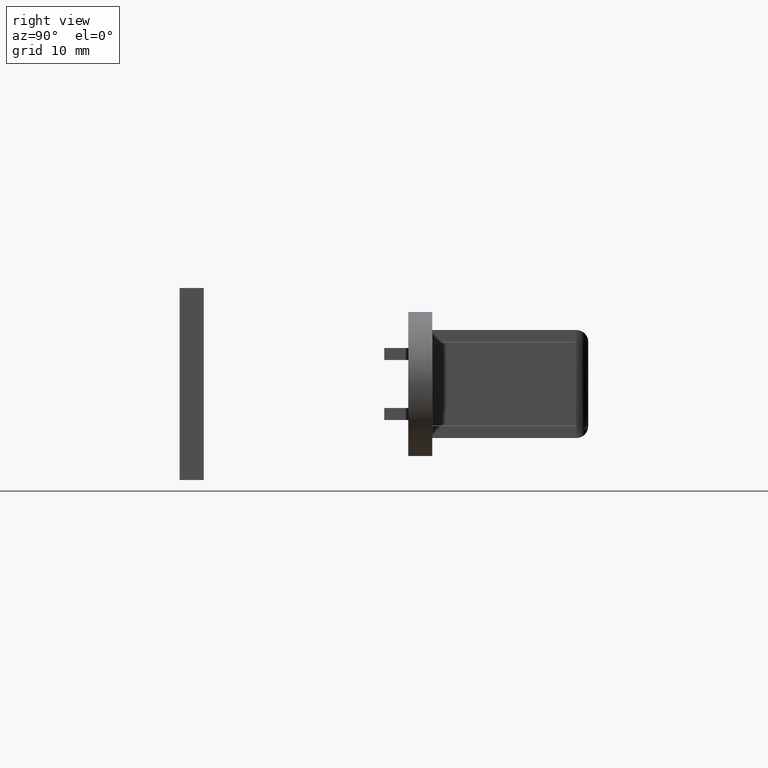
[diagram: clean part render]
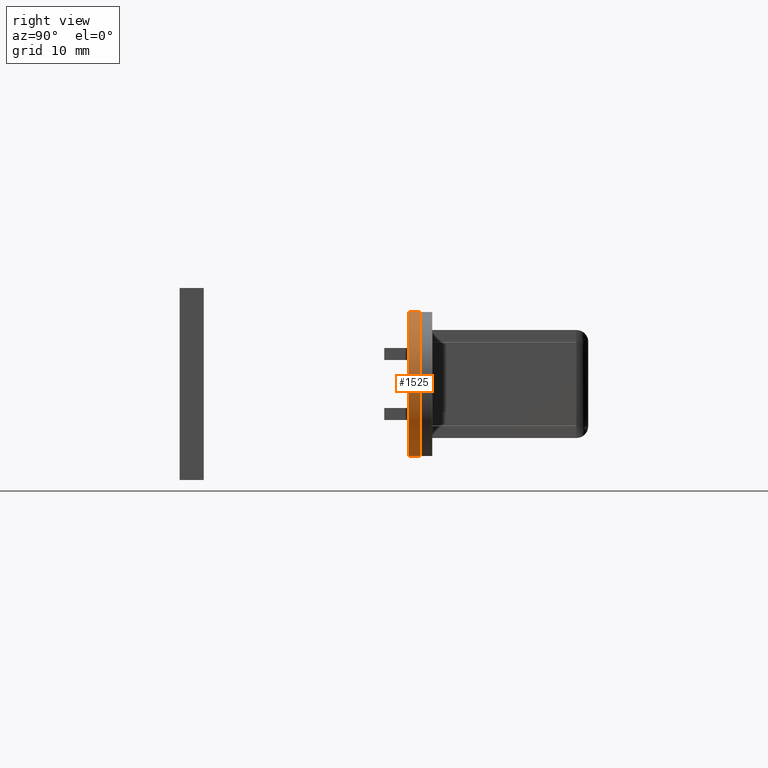
[diagram: same view with one face highlighted and labeled with its STEP entity id]
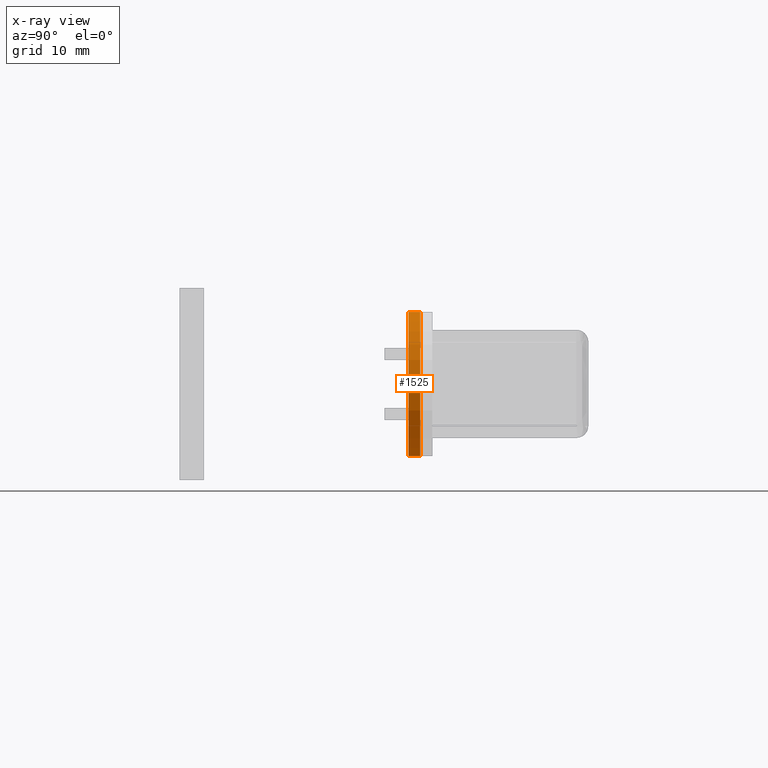
[diagram: x-ray of the same camera — body ghosted, the highlighted face saturated]
A machine part, right view. The second image highlights one B-rep face of the part: STEP entity #1525.
The next image is the same camera in x-ray: the body ghosted, the highlighted face saturated — about 0% of this face is hidden behind the body in this view.
In plain terms, the highlighted face is a freeform B-spline surface patch.
Its self-contained STEP definition (entity closure, byte-faithful):
#1278=CARTESIAN_POINT('',(17.999995999999999,-15.0,-6.0));
#1279=VERTEX_POINT('',#1278);
#1292=CARTESIAN_POINT('',(17.999995999999999,-14.000000000000121,-6.0));
#1293=VERTEX_POINT('',#1292);
#1299=CARTESIAN_POINT('',(17.999995999999999,-14.000000000000121,-6.0));
#1300=CARTESIAN_POINT('',(17.999995999999999,-15.0,-6.0));
#1301=QUASI_UNIFORM_CURVE('',1,(#1299,#1300),.UNSPECIFIED.,.F.,.U.);
#1302=EDGE_CURVE('',#1293,#1279,#1301,.T.);
#1429=CARTESIAN_POINT('',(18.009793955705899,-15.0,5.999992000000000));
#1430=VERTEX_POINT('',#1429);
#1436=CARTESIAN_POINT('',(18.009793955705899,-14.000000000000121,5.999992000000000));
#1437=VERTEX_POINT('',#1436);
#1438=CARTESIAN_POINT('',(18.009793955705899,-14.000000000000121,5.999992000000000));
#1439=CARTESIAN_POINT('',(18.009793955705899,-15.0,5.999992000000000));
#1440=QUASI_UNIFORM_CURVE('',1,(#1438,#1439),.UNSPECIFIED.,.F.,.U.);
#1441=EDGE_CURVE('',#1437,#1430,#1440,.T.);
#1452=CARTESIAN_POINT('',(17.842934310152749,-13.975000000000120,5.997943949853342));
#1453=CARTESIAN_POINT('',(17.842934310152749,-15.025625000000000,5.997943949853342));
#1454=CARTESIAN_POINT('',(24.163448437057401,-13.975000000000122,6.163452437057412));
#1455=CARTESIAN_POINT('',(24.163448437057401,-15.025624999999996,6.163452437057412));
#1456=CARTESIAN_POINT('',(23.997939949853340,-13.975000000000120,-0.157061689847231));
#1457=CARTESIAN_POINT('',(23.997939949853340,-15.025625000000000,-0.157061689847231));
#1458=CARTESIAN_POINT('',(23.832431462649279,-13.975000000000122,-6.477575816751870));
#1459=CARTESIAN_POINT('',(23.832431462649279,-15.025624999999996,-6.477575816751870));
#1460=CARTESIAN_POINT('',(17.529241425632939,-13.975000000000120,-5.981504002398763));
#1461=CARTESIAN_POINT('',(17.529241425632939,-15.025625000000000,-5.981504002398763));
#1469=(BOUNDED_SURFACE()B_SPLINE_SURFACE(1,2,((#1452,#1454,#1456,#1458,#1460),(#1453,#1455,#1457,#1459,#1461)),.UNSPECIFIED.,.F.,.F.,.U.)B_SPLINE_SURFACE_WITH_KNOTS((2,2),(3,2,3),(0.0,1.0),(0.0,10.311213743204060,20.622427486408110),.UNSPECIFIED.)GEOMETRIC_REPRESENTATION_ITEM()RATIONAL_B_SPLINE_SURFACE(((1.0,0.688354575693754,1.0,0.688354575693754,1.0),(1.0,0.688354575693754,1.0,0.688354575693754,1.0)))REPRESENTATION_ITEM('')SURFACE());
#1470=CARTESIAN_POINT('',(17.999995999999999,-15.0,-6.0));
#1471=CARTESIAN_POINT('',(18.331158682282190,-15.000000000000011,-6.000014240358727));
#1472=CARTESIAN_POINT('',(19.091623677619719,-14.999999999999920,-5.936925208282705));
#1473=CARTESIAN_POINT('',(20.041992235668289,-15.000000000000149,-5.670965191140366));
#1474=CARTESIAN_POINT('',(20.832759703809579,-14.999999999999829,-5.302997381559284));
#1475=CARTESIAN_POINT('',(21.515239814754299,-15.000000000000080,-4.888533853382110));
#1476=CARTESIAN_POINT('',(22.256084738064800,-15.000000000000259,-4.277217183423700));
#1477=CARTESIAN_POINT('',(22.944072594409761,-14.999999999999689,-3.455191869077793));
#1478=CARTESIAN_POINT('',(23.493533199793649,-15.000000000000080,-2.493385472955543));
#1479=CARTESIAN_POINT('',(23.836947858457510,-15.000000000000149,-1.516733885300389));
#1480=CARTESIAN_POINT('',(23.990924591499670,-14.999999999999540,-0.582124650855105));
#1481=CARTESIAN_POINT('',(24.012104475339189,-15.000000000001180,0.253215154506520));
#1482=CARTESIAN_POINT('',(23.916711183584191,-14.999999999999339,1.145731924935947));
#1483=CARTESIAN_POINT('',(23.648279633049491,-15.000000000000190,2.119445581952790));
#1484=CARTESIAN_POINT('',(23.182329962993371,-15.000000000000210,3.084154414574544));
#1485=CARTESIAN_POINT('',(22.649500744973668,-15.000000000000369,3.823074696190967));
#1486=CARTESIAN_POINT('',(22.021563651128510,-14.999999999999870,4.480173293841873));
#1487=CARTESIAN_POINT('',(21.334670365604850,-15.000000000000020,5.021072329582148));
#1488=CARTESIAN_POINT('',(20.450113297387979,-14.999999999999959,5.505955382702260));
#1489=CARTESIAN_POINT('',(19.358749678025859,-15.000000000000201,5.890751496588606));
#1490=CARTESIAN_POINT('',(18.512681898915350,-14.999999999999559,5.999299715809912));
#1491=CARTESIAN_POINT('',(18.009793955705899,-15.0,5.999992000000000));
#1492=B_SPLINE_CURVE_WITH_KNOTS('',3,(#1470,#1471,#1472,#1473,#1474,#1475,#1476,#1477,#1478,#1479,#1480,#1481,#1482,#1483,#1484,#1485,#1486,#1487,#1488,#1489,#1490,#1491),.UNSPECIFIED.,.F.,.U.,(4,1,1,1,1,1,1,1,1,1,1,1,1,1,1,1,1,1,1,4),(0.000000102261588,0.993494156851945,2.281373765471511,2.943705251361775,3.606044323560333,4.673151798009135,5.813847171621566,6.807359121419523,7.984846823184279,8.904761812479643,9.640639543127548,10.486966130734260,11.590868644334069,12.657978959328590,13.688280658021050,14.313824286125829,15.380930425689479,16.300848851290780,17.331156312904291,18.839787484887111),.UNSPECIFIED.);
#1493=EDGE_CURVE('',#1279,#1430,#1492,.T.);
#1494=ORIENTED_EDGE('',*,*,#1493,.F.);
#1495=ORIENTED_EDGE('',*,*,#1302,.F.);
#1496=CARTESIAN_POINT('',(17.999995999999999,-14.000000000000121,-6.0));
#1497=CARTESIAN_POINT('',(18.331158669580841,-14.000000000000130,-6.000014102383327));
#1498=CARTESIAN_POINT('',(19.091623689378888,-14.000000000000050,-5.936925348517688));
#1499=CARTESIAN_POINT('',(20.041992231190399,-14.000000000000259,-5.670965141037293));
#1500=CARTESIAN_POINT('',(20.832759704880669,-13.999999999999970,-5.302997390088423));
#1501=CARTESIAN_POINT('',(21.515239872494170,-14.000000000000190,-4.888533870951306));
#1502=CARTESIAN_POINT('',(22.256084393660970,-14.000000000000361,-4.277217092268431));
#1503=CARTESIAN_POINT('',(22.944078955693470,-13.999999999999760,-3.455194049609284));
#1504=CARTESIAN_POINT('',(23.389714135908200,-14.000000000000540,-2.675045987178862));
#1505=CARTESIAN_POINT('',(23.730708330201399,-13.999999999999570,-1.846102379295731));
#1506=CARTESIAN_POINT('',(23.979924575365651,-14.000000000000499,-0.867014355400262));
#1507=CARTESIAN_POINT('',(24.030649196931090,-13.999999999999970,0.291859589070955));
#1508=CARTESIAN_POINT('',(23.876661028328101,-14.000000000000259,1.314154601577541));
#1509=CARTESIAN_POINT('',(23.600041770146021,-13.999999999999901,2.219236680005837));
#1510=CARTESIAN_POINT('',(23.182345169041081,-14.000000000000499,3.084158114383061));
#1511=CARTESIAN_POINT('',(22.649498168187979,-14.000000000000419,3.823074276674449));
#1512=CARTESIAN_POINT('',(22.021563100515991,-14.000000000000011,4.480171834553658));
#1513=CARTESIAN_POINT('',(21.334672538448920,-14.000000000000160,5.021077789970152));
#1514=CARTESIAN_POINT('',(20.568767567787930,-14.000000000000080,5.440899478817063));
#1515=CARTESIAN_POINT('',(19.813782517448331,-14.000000000000361,5.736044274170150));
#1516=CARTESIAN_POINT('',(18.990920887581989,-13.999999999999631,5.943476922536580));
#1517=CARTESIAN_POINT('',(18.353223868562079,-14.000000000000300,5.999461511884674));
#1518=CARTESIAN_POINT('',(18.009793955705899,-14.000000000000121,5.999992000000000));
#1519=B_SPLINE_CURVE_WITH_KNOTS('',3,(#1496,#1497,#1498,#1499,#1500,#1501,#1502,#1503,#1504,#1505,#1506,#1507,#1508,#1509,#1510,#1511,#1512,#1513,#1514,#1515,#1516,#1517,#1518),.UNSPECIFIED.,.F.,.U.,(4,1,1,1,1,1,1,1,1,1,1,1,1,1,1,1,1,1,1,1,4),(0.000000102261588,0.993494156851945,2.281373765471511,2.943705251361775,3.606044323560333,4.673151798009135,5.813847171621566,6.807359121419523,7.359312962330669,8.500012090721283,9.824627099977857,10.818143888568230,11.590868644334069,12.657978959328590,13.688280658021050,14.313824286125829,15.380930425689479,16.300848851290780,16.926391457874850,17.809501048800090,18.839787484887111),.UNSPECIFIED.);
#1520=EDGE_CURVE('',#1293,#1437,#1519,.T.);
#1521=ORIENTED_EDGE('',*,*,#1520,.T.);
#1522=ORIENTED_EDGE('',*,*,#1441,.T.);
#1523=EDGE_LOOP('',(#1494,#1495,#1521,#1522));
#1524=FACE_OUTER_BOUND('',#1523,.T.);
#1525=ADVANCED_FACE('',(#1524),#1469,.T.);